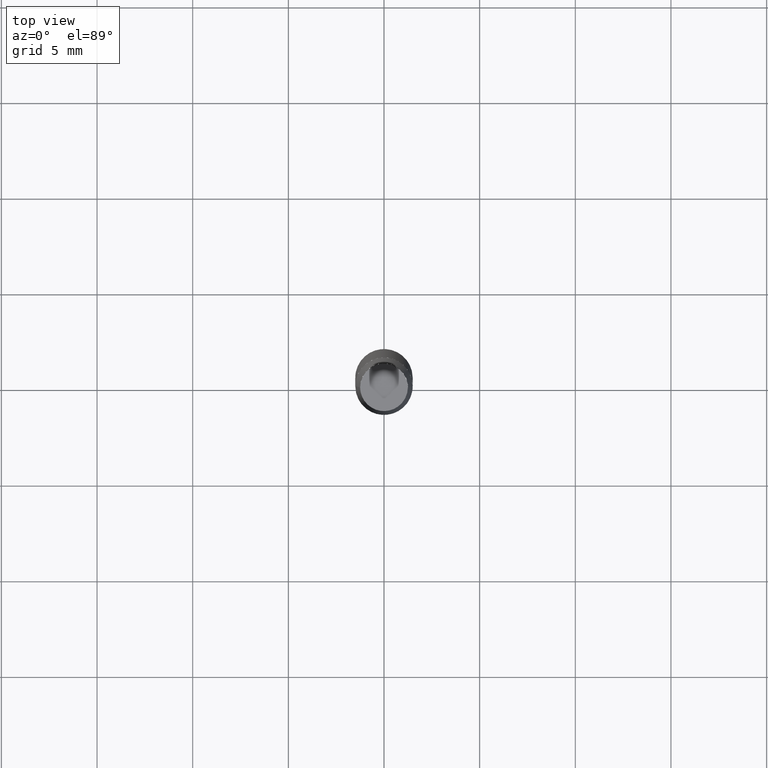
[diagram: clean part render]
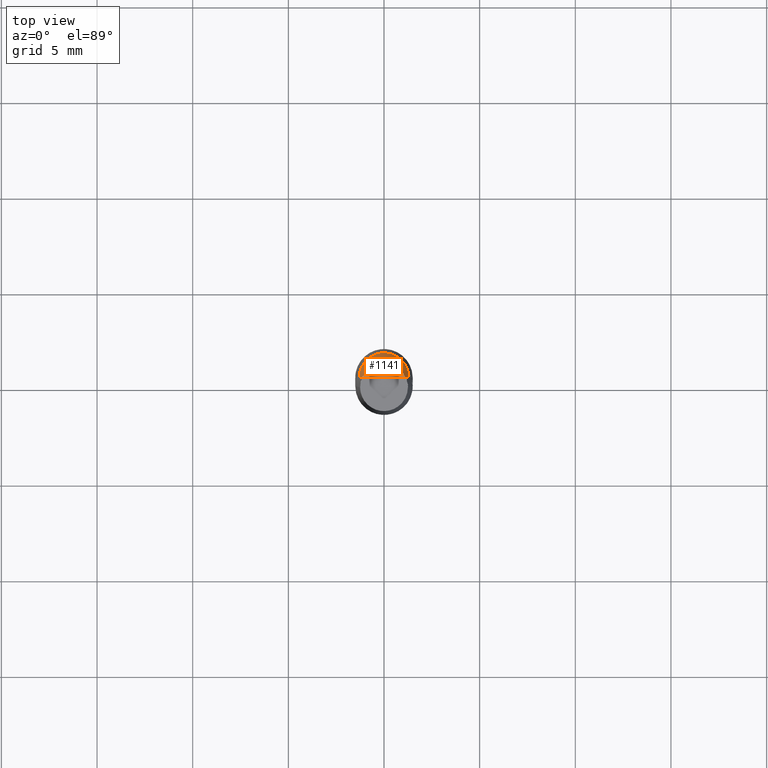
[diagram: same view with one face highlighted and labeled with its STEP entity id]
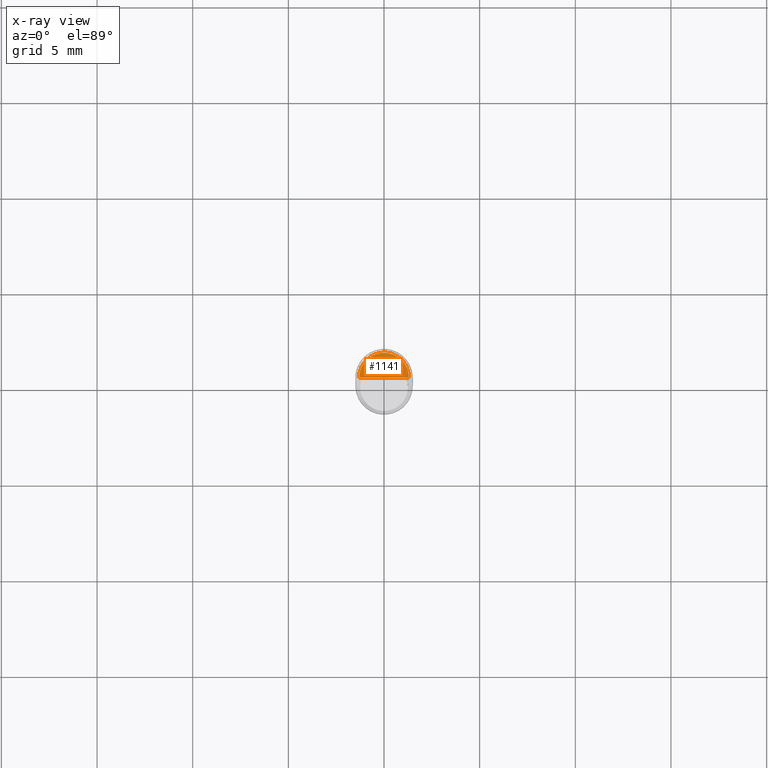
[diagram: x-ray of the same camera — body ghosted, the highlighted face saturated]
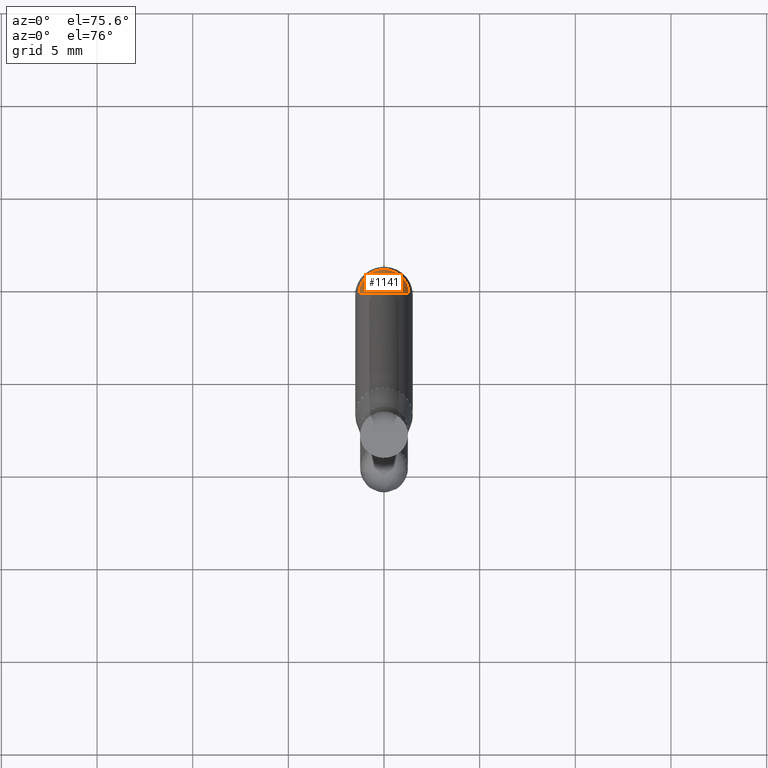
[diagram: same view with one face highlighted and labeled with its STEP entity id]
A machine part, top view. The second image highlights one B-rep face of the part: STEP entity #1141.
The next image is the same camera in x-ray: the body ghosted, the highlighted face saturated — about 0% of this face is hidden behind the body in this view.
A second angle (auxiliary view) of the same face is appended — the face is thin or edge-on in the first view.
In plain terms, the highlighted face is a freeform B-spline surface patch.
Its self-contained STEP definition (entity closure, byte-faithful):
#874=CARTESIAN_POINT('',(1.3,0.0,25.5));
#875=CARTESIAN_POINT('',(1.3,1.3,25.5));
#876=CARTESIAN_POINT('',(0.0,1.3,25.5));
#877=CARTESIAN_POINT('',(-1.3,1.3,25.5));
#878=CARTESIAN_POINT('',(-1.3,0.0,25.5));
#879=CARTESIAN_POINT('',(0.0,0.0,25.5));
#1126=(
BOUNDED_SURFACE()
B_SPLINE_SURFACE(1,2,(
(#874,#875,#876,#877,#878),
(#879,#879,#879,#879,#879)
), .UNSPECIFIED.,.F.,.F.,.F.)
B_SPLINE_SURFACE_WITH_KNOTS((2,2),(3,2,3),(
0.0,1.0),(
0.0,0.5,1.0), .UNSPECIFIED.)
GEOMETRIC_REPRESENTATION_ITEM()
RATIONAL_B_SPLINE_SURFACE(((1.0,0.707106781187,1.0,0.707106781187,1.0),
(1.0,0.707106781187,1.0,0.707106781187,1.0)
))
REPRESENTATION_ITEM('')
SURFACE()
);
#1127=(
BOUNDED_CURVE()
B_SPLINE_CURVE(2,(#878,#877,#876,#875,#874),.UNSPECIFIED.,.F.,.F.)
B_SPLINE_CURVE_WITH_KNOTS((3,2,3),
(0.0,0.5,1.0),.UNSPECIFIED.)
CURVE()
GEOMETRIC_REPRESENTATION_ITEM()
RATIONAL_B_SPLINE_CURVE((1.0,0.707106781187,1.0,0.707106781187,1.0))
REPRESENTATION_ITEM('')
);
#1128=(
BOUNDED_CURVE()
B_SPLINE_CURVE(1,(#874,#879),.UNSPECIFIED.,.F.,.F.)
B_SPLINE_CURVE_WITH_KNOTS((2,2),
(0.0,1.0),.UNSPECIFIED.)
CURVE()
GEOMETRIC_REPRESENTATION_ITEM()
RATIONAL_B_SPLINE_CURVE((1.0,1.0))
REPRESENTATION_ITEM('')
);
#1129=(
BOUNDED_CURVE()
B_SPLINE_CURVE(1,(#879,#878),.UNSPECIFIED.,.F.,.F.)
B_SPLINE_CURVE_WITH_KNOTS((2,2),
(0.0,1.0),.UNSPECIFIED.)
CURVE()
GEOMETRIC_REPRESENTATION_ITEM()
RATIONAL_B_SPLINE_CURVE((1.0,1.0))
REPRESENTATION_ITEM('')
);
#1130=VERTEX_POINT('',#874);
#1131=VERTEX_POINT('',#878);
#1132=VERTEX_POINT('',#879);
#1133=EDGE_CURVE('',#1131,#1130,#1127,.T.);
#1134=EDGE_CURVE('',#1130,#1132,#1128,.T.);
#1135=EDGE_CURVE('',#1132,#1131,#1129,.T.);
#1136=ORIENTED_EDGE('',*,*,#1133,.T.);
#1137=ORIENTED_EDGE('',*,*,#1134,.T.);
#1138=ORIENTED_EDGE('',*,*,#1135,.T.);
#1139=EDGE_LOOP('',(#1136,#1137,#1138));
#1140=FACE_OUTER_BOUND('',#1139,.T.);
#1141=ADVANCED_FACE('',(#1140),#1126,.T.);